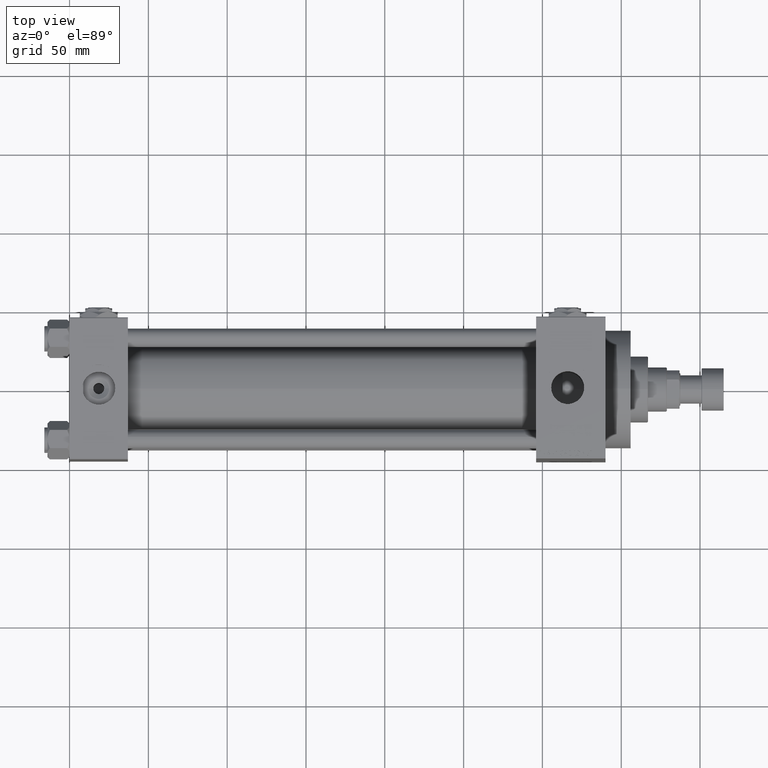
[diagram: clean part render]
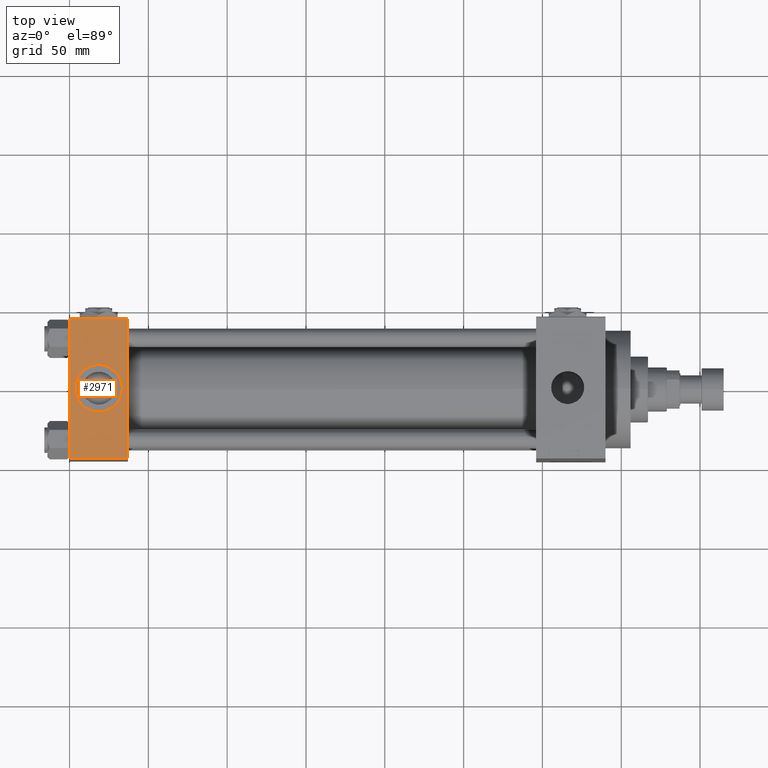
[diagram: same view with one face highlighted and labeled with its STEP entity id]
A machine part, top view. The second image highlights one B-rep face of the part: STEP entity #2971.
In plain terms, the highlighted planar face has unit normal (0, 0, -1).
Its self-contained STEP definition (entity closure, byte-faithful):
#162 = CARTESIAN_POINT ( 'NONE',  ( 37.00000000000000000, -44.49999999999998579, 45.00000000000000000 ) ) ;
#751 = CARTESIAN_POINT ( 'NONE',  ( 3.499999999999997780, -6.836647181163008250E-15, 45.00000000000000711 ) ) ;
#2004 = EDGE_CURVE ( 'NONE', #15337, #34359, #6576, .T. ) ;
#2971 = ADVANCED_FACE ( 'NONE', ( #37463, #48782 ), #45506, .F. ) ;
#4157 = CARTESIAN_POINT ( 'NONE',  ( 18.50000000000000000, -8.673617379884038628E-15, 45.00000000000000711 ) ) ;
#6576 = CIRCLE ( 'NONE', #23478, 15.00000000000000355 ) ;
#7287 = EDGE_CURVE ( 'NONE', #36777, #46579, #48798, .T. ) ;
#7433 = DIRECTION ( 'NONE',  ( -1.000000000000000000, 0.000000000000000000, 0.000000000000000000 ) ) ;
#7741 = DIRECTION ( 'NONE',  ( 1.000000000000000000, 0.000000000000000000, 0.000000000000000000 ) ) ;
#7949 = DIRECTION ( 'NONE',  ( 0.000000000000000000, 0.000000000000000000, 1.000000000000000000 ) ) ;
#9400 = ORIENTED_EDGE ( 'NONE', *, *, #7287, .T. ) ;
#9543 = DIRECTION ( 'NONE',  ( 0.000000000000000000, -1.000000000000000000, -1.541976423090495387E-16 ) ) ;
#10111 = EDGE_CURVE ( 'NONE', #49385, #11734, #42397, .T. ) ;
#10272 = DIRECTION ( 'NONE',  ( 0.000000000000000000, -1.000000000000000000, -1.541976423090495387E-16 ) ) ;
#10771 = EDGE_CURVE ( 'NONE', #34359, #15337, #45469, .T. ) ;
#10907 = VECTOR ( 'NONE', #10272, 1000.000000000000000 ) ;
#11686 = CARTESIAN_POINT ( 'NONE',  ( 33.50000000000000000, -8.673617379884038628E-15, 45.00000000000000711 ) ) ;
#11734 = VERTEX_POINT ( 'NONE', #39059 ) ;
#12210 = CARTESIAN_POINT ( 'NONE',  ( 0.000000000000000000, -44.49999999999995737, 45.00000000000000000 ) ) ;
#12535 = VECTOR ( 'NONE', #7433, 1000.000000000000000 ) ;
#12821 = DIRECTION ( 'NONE',  ( 0.000000000000000000, 0.000000000000000000, 1.000000000000000000 ) ) ;
#13808 = LINE ( 'NONE', #25846, #10907 ) ;
#14899 = EDGE_LOOP ( 'NONE', ( #22498, #30667 ) ) ;
#15337 = VERTEX_POINT ( 'NONE', #11686 ) ;
#16611 = CARTESIAN_POINT ( 'NONE',  ( 18.50000000000000000, -8.673617379884038628E-15, 45.00000000000000711 ) ) ;
#22498 = ORIENTED_EDGE ( 'NONE', *, *, #2004, .F. ) ;
#23478 = AXIS2_PLACEMENT_3D ( 'NONE', #4157, #7949, #26547 ) ;
#24555 = EDGE_LOOP ( 'NONE', ( #28414, #9400, #39224, #33997 ) ) ;
#25846 = CARTESIAN_POINT ( 'NONE',  ( 37.00000000000000000, 44.99999999999998579, 45.00000000000001421 ) ) ;
#26545 = CARTESIAN_POINT ( 'NONE',  ( 0.000000000000000000, 44.49999999999998579, 45.00000000000001421 ) ) ;
#26547 = DIRECTION ( 'NONE',  ( 1.000000000000000000, 0.000000000000000000, 0.000000000000000000 ) ) ;
#27524 = CARTESIAN_POINT ( 'NONE',  ( 37.00000000000000000, -44.49999999999995737, 45.00000000000000000 ) ) ;
#28142 = DIRECTION ( 'NONE',  ( 1.000000000000000000, 0.000000000000000000, 0.000000000000000000 ) ) ;
#28414 = ORIENTED_EDGE ( 'NONE', *, *, #36880, .T. ) ;
#29263 = VECTOR ( 'NONE', #7741, 1000.000000000000000 ) ;
#29653 = DIRECTION ( 'NONE',  ( 0.000000000000000000, 1.541976423090495633E-16, -1.000000000000000000 ) ) ;
#30152 = CARTESIAN_POINT ( 'NONE',  ( 37.00000000000000000, 44.99999999999998579, 45.00000000000001421 ) ) ;
#30667 = ORIENTED_EDGE ( 'NONE', *, *, #10771, .F. ) ;
#33997 = ORIENTED_EDGE ( 'NONE', *, *, #10111, .T. ) ;
#34359 = VERTEX_POINT ( 'NONE', #751 ) ;
#35966 = LINE ( 'NONE', #48264, #49318 ) ;
#36777 = VERTEX_POINT ( 'NONE', #12210 ) ;
#36880 = EDGE_CURVE ( 'NONE', #11734, #36777, #35966, .T. ) ;
#37463 = FACE_BOUND ( 'NONE', #14899, .T. ) ;
#39059 = CARTESIAN_POINT ( 'NONE',  ( 0.000000000000000000, 44.49999999999998579, 45.00000000000001421 ) ) ;
#39224 = ORIENTED_EDGE ( 'NONE', *, *, #40847, .F. ) ;
#40731 = DIRECTION ( 'NONE',  ( 0.000000000000000000, 1.000000000000000000, 1.541976423090495633E-16 ) ) ;
#40847 = EDGE_CURVE ( 'NONE', #49385, #46579, #13808, .T. ) ;
#41948 = AXIS2_PLACEMENT_3D ( 'NONE', #30152, #29653, #40731 ) ;
#42397 = LINE ( 'NONE', #26545, #12535 ) ;
#43082 = AXIS2_PLACEMENT_3D ( 'NONE', #16611, #12821, #28142 ) ;
#45469 = CIRCLE ( 'NONE', #43082, 15.00000000000000355 ) ;
#45506 = PLANE ( 'NONE',  #41948 ) ;
#46579 = VERTEX_POINT ( 'NONE', #27524 ) ;
#48264 = CARTESIAN_POINT ( 'NONE',  ( 0.000000000000000000, 44.99999999999998579, 45.00000000000001421 ) ) ;
#48782 = FACE_OUTER_BOUND ( 'NONE', #24555, .T. ) ;
#48798 = LINE ( 'NONE', #162, #29263 ) ;
#48864 = CARTESIAN_POINT ( 'NONE',  ( 37.00000000000000000, 44.49999999999998579, 45.00000000000001421 ) ) ;
#49318 = VECTOR ( 'NONE', #9543, 1000.000000000000000 ) ;
#49385 = VERTEX_POINT ( 'NONE', #48864 ) ;